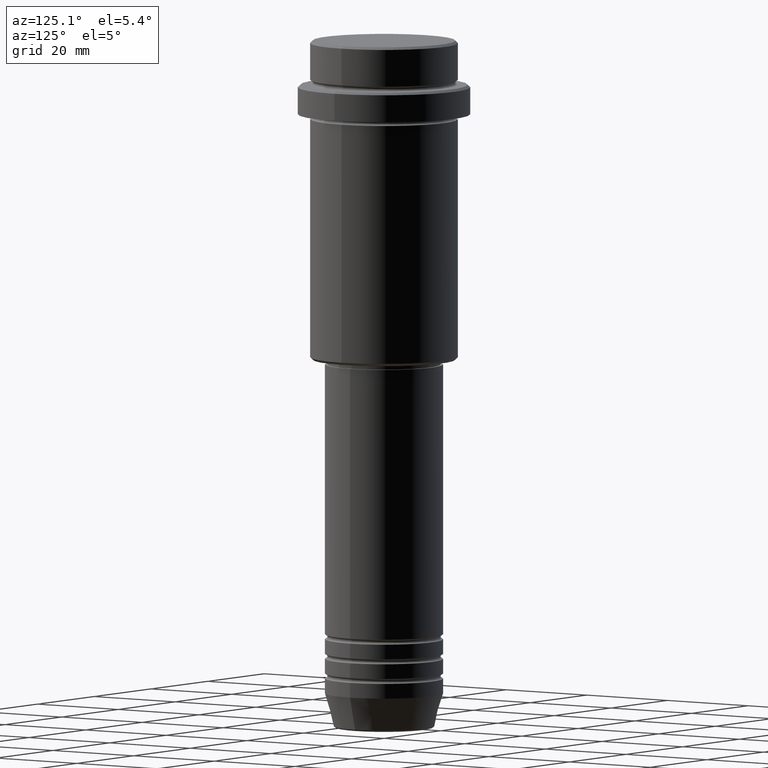
[diagram: clean part render]
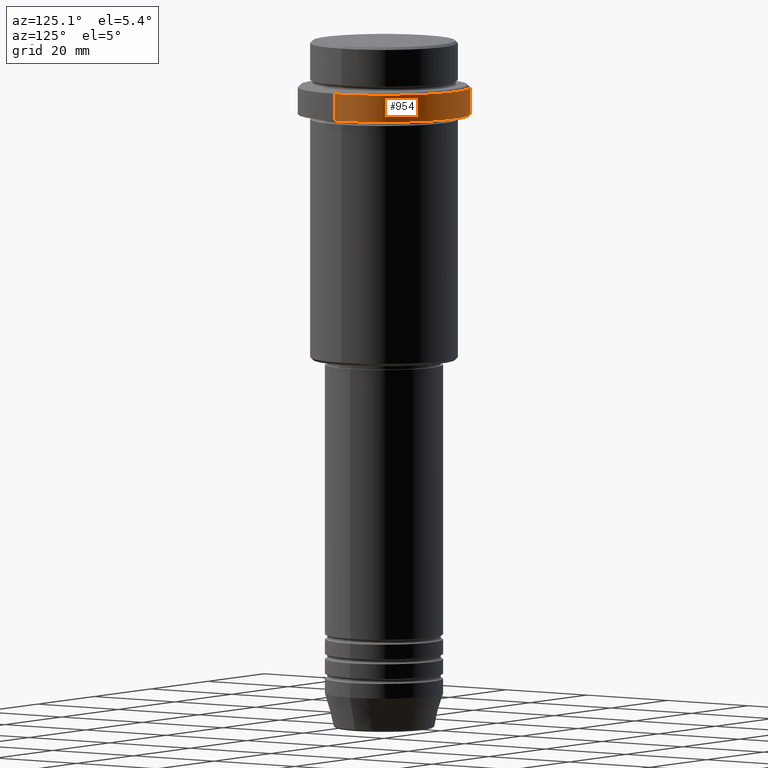
[diagram: same view with one face highlighted and labeled with its STEP entity id]
A machine part, auxiliary view. The second image highlights one B-rep face of the part: STEP entity #954.
In plain terms, the highlighted cylindrical surface (partial cylindrical patch) has radius 17.5 mm, axis along (-0, -0, 1).
Its self-contained STEP definition (entity closure, byte-faithful):
#8 = CIRCLE ( 'NONE', #1106, 17.50000000000000000 ) ;
#85 = DIRECTION ( 'NONE',  ( -0.000000000000000000, -0.000000000000000000, 1.000000000000000000 ) ) ;
#187 = VECTOR ( 'NONE', #464, 1000.000000000000000 ) ;
#242 = EDGE_CURVE ( 'NONE', #287, #248, #8, .T. ) ;
#248 = VERTEX_POINT ( 'NONE', #665 ) ;
#281 = VECTOR ( 'NONE', #687, 1000.000000000000000 ) ;
#287 = VERTEX_POINT ( 'NONE', #558 ) ;
#293 = VERTEX_POINT ( 'NONE', #674 ) ;
#294 = CARTESIAN_POINT ( 'NONE',  ( 0.000000000000000000, 0.000000000000000000, 0.000000000000000000 ) ) ;
#380 = CARTESIAN_POINT ( 'NONE',  ( 17.50000000000000000, 0.000000000000000000, -9.500000000000000000 ) ) ;
#382 = CIRCLE ( 'NONE', #509, 17.50000000000000000 ) ;
#462 = EDGE_CURVE ( 'NONE', #293, #1321, #382, .T. ) ;
#464 = DIRECTION ( 'NONE',  ( -0.000000000000000000, -0.000000000000000000, 1.000000000000000000 ) ) ;
#466 = CARTESIAN_POINT ( 'NONE',  ( 0.000000000000000000, 0.000000000000000000, -15.00000000000000000 ) ) ;
#486 = CARTESIAN_POINT ( 'NONE',  ( 0.000000000000000000, 0.000000000000000000, -9.500000000000000000 ) ) ;
#506 = CYLINDRICAL_SURFACE ( 'NONE', #875, 17.50000000000000000 ) ;
#509 = AXIS2_PLACEMENT_3D ( 'NONE', #486, #1266, #1040 ) ;
#535 = CARTESIAN_POINT ( 'NONE',  ( -17.50000000000000000, 2.143131898507868248E-15, 0.000000000000000000 ) ) ;
#558 = CARTESIAN_POINT ( 'NONE',  ( 17.50000000000000000, 0.000000000000000000, -15.00000000000000000 ) ) ;
#574 = DIRECTION ( 'NONE',  ( -0.000000000000000000, -0.000000000000000000, 1.000000000000000000 ) ) ;
#588 = EDGE_LOOP ( 'NONE', ( #1208, #1292, #1367, #1275 ) ) ;
#665 = CARTESIAN_POINT ( 'NONE',  ( -17.50000000000000000, 2.143131898507868248E-15, -15.00000000000000000 ) ) ;
#674 = CARTESIAN_POINT ( 'NONE',  ( -17.50000000000000000, 2.143131898507868248E-15, -9.500000000000000000 ) ) ;
#687 = DIRECTION ( 'NONE',  ( -0.000000000000000000, -0.000000000000000000, 1.000000000000000000 ) ) ;
#820 = CARTESIAN_POINT ( 'NONE',  ( 17.50000000000000000, 0.000000000000000000, 0.000000000000000000 ) ) ;
#857 = FACE_OUTER_BOUND ( 'NONE', #588, .T. ) ;
#875 = AXIS2_PLACEMENT_3D ( 'NONE', #294, #85, #1409 ) ;
#908 = DIRECTION ( 'NONE',  ( 1.000000000000000000, 0.000000000000000000, 0.000000000000000000 ) ) ;
#932 = LINE ( 'NONE', #820, #187 ) ;
#954 = ADVANCED_FACE ( 'NONE', ( #857 ), #506, .T. ) ;
#1040 = DIRECTION ( 'NONE',  ( 1.000000000000000000, 0.000000000000000000, 0.000000000000000000 ) ) ;
#1092 = LINE ( 'NONE', #535, #281 ) ;
#1106 = AXIS2_PLACEMENT_3D ( 'NONE', #466, #574, #908 ) ;
#1208 = ORIENTED_EDGE ( 'NONE', *, *, #242, .T. ) ;
#1228 = EDGE_CURVE ( 'NONE', #248, #293, #1092, .T. ) ;
#1258 = EDGE_CURVE ( 'NONE', #287, #1321, #932, .T. ) ;
#1266 = DIRECTION ( 'NONE',  ( 0.000000000000000000, 0.000000000000000000, -1.000000000000000000 ) ) ;
#1275 = ORIENTED_EDGE ( 'NONE', *, *, #1258, .F. ) ;
#1292 = ORIENTED_EDGE ( 'NONE', *, *, #1228, .T. ) ;
#1321 = VERTEX_POINT ( 'NONE', #380 ) ;
#1367 = ORIENTED_EDGE ( 'NONE', *, *, #462, .T. ) ;
#1409 = DIRECTION ( 'NONE',  ( 1.000000000000000000, 0.000000000000000000, 0.000000000000000000 ) ) ;